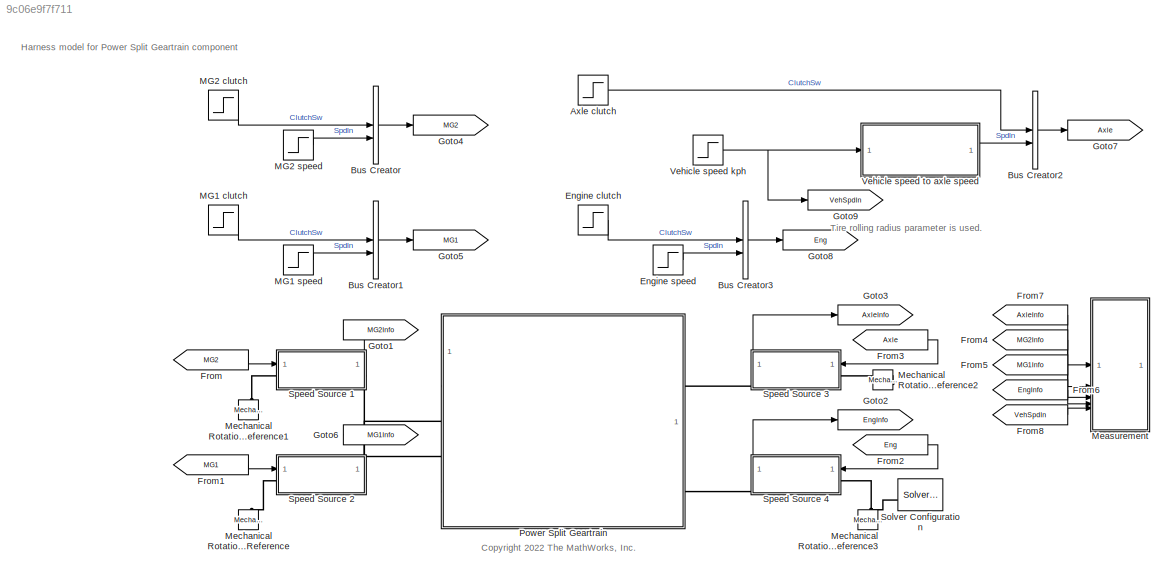
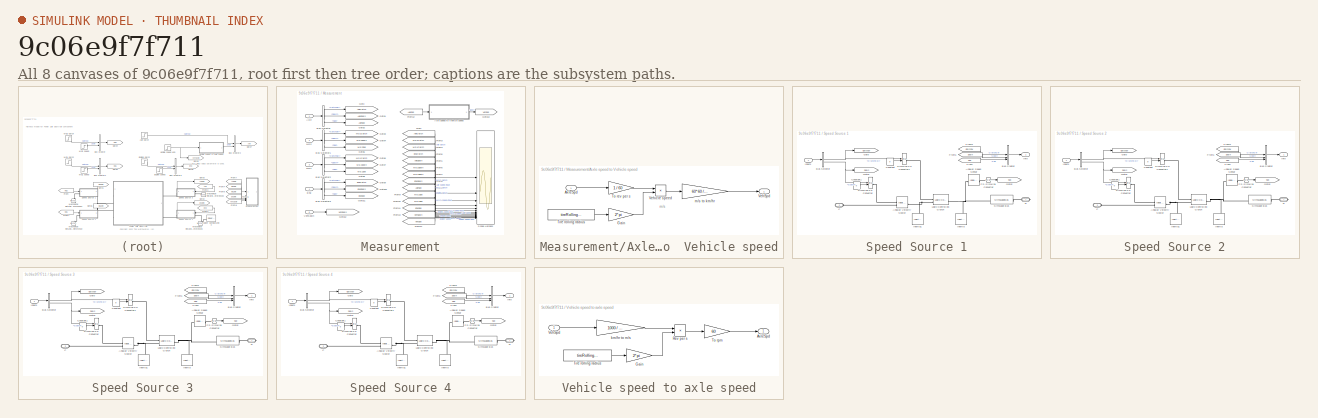
[diagram: thumbnail index - all 8 canvases of the model, root first then tree order]
MODEL mdl_9c06e9f7f711
KIND model
CONFIG AbsTol = auto
CONFIG EnableMultiTasking = off
CONFIG FixedStep = auto
CONFIG MaxStep = auto
CONFIG MinStep = auto
CONFIG PreLoadFcn = PowerSplitGeartrain_Component_harness_setup
CONFIG RelTol = 1e-3
CONFIG SampleTimeConstraint = Unconstrained
CONFIG SolverName = daessc
CONFIG StartTime = 0.0
CONFIG StopTime = 10.0
BLOCK [Step] Axle clutch
  AttributesFormatString = Before %<Before>\nTime %<Time>\nAfter %<After>
  Before = 1
  NameLocation = left
  SampleTime = 0
BLOCK [BusCreator] Bus Creator
  DisplayOption = bar
  InheritFromInputs = on
  Inputs = 2
BLOCK [BusCreator] Bus Creator1
  DisplayOption = bar
  InheritFromInputs = on
  Inputs = 2
BLOCK [BusCreator] Bus Creator2
  DisplayOption = bar
  InheritFromInputs = on
  Inputs = 2
BLOCK [BusCreator] Bus Creator3
  DisplayOption = bar
  InheritFromInputs = on
  Inputs = 2
BLOCK [Step] Engine clutch
  After = 0
  AttributesFormatString = Before %<Before>\nTime %<Time>\nAfter %<After>
  NameLocation = left
  SampleTime = 0
BLOCK [Step] Engine speed
  After = 0
  AttributesFormatString = Before %<Before>\nTime %<Time>\nAfter %<After>
  NameLocation = left
  SampleTime = 0
BLOCK [From] From
  GotoTag = MG2
  NameLocation = left
BLOCK [From] From1
  GotoTag = MG1
  NameLocation = left
BLOCK [From] From2
  GotoTag = Eng
  NameLocation = left
BLOCK [From] From3
  GotoTag = Axle
  NameLocation = left
BLOCK [From] From4
  GotoTag = MG2Info
  NameLocation = left
BLOCK [From] From5
  GotoTag = MG1Info
  NameLocation = left
BLOCK [From] From6
  GotoTag = EngInfo
  NameLocation = left
BLOCK [From] From7
  GotoTag = AxleInfo
  NameLocation = left
BLOCK [From] From8
  GotoTag = VehSpdIn
BLOCK [Goto] Goto1
  GotoTag = MG2Info
BLOCK [Goto] Goto2
  GotoTag = EngInfo
  NameLocation = right
BLOCK [Goto] Goto3
  GotoTag = AxleInfo
  NameLocation = right
BLOCK [Goto] Goto4
  GotoTag = MG2
BLOCK [Goto] Goto5
  GotoTag = MG1
BLOCK [Goto] Goto6
  GotoTag = MG1Info
BLOCK [Goto] Goto7
  GotoTag = Axle
BLOCK [Goto] Goto8
  GotoTag = Eng
BLOCK [Goto] Goto9
  GotoTag = VehSpdIn
  NameLocation = right
BLOCK [Step] MG1 clutch
  After = 0
  AttributesFormatString = Before %<Before>\nTime %<Time>\nAfter %<After>
  NameLocation = left
  SampleTime = 0
BLOCK [Step] MG1 speed
  After = 0
  AttributesFormatString = Before %<Before>\nTime %<Time>\nAfter %<After>
  NameLocation = left
  SampleTime = 0
BLOCK [Step] MG2 clutch
  After = 0
  AttributesFormatString = Before %<Before>\nTime %<Time>\nAfter %<After>
  NameLocation = left
  SampleTime = 0
BLOCK [Step] MG2 speed
  After = 0
  AttributesFormatString = Before %<Before>\nTime %<Time>\nAfter %<After>
  NameLocation = left
  SampleTime = 0
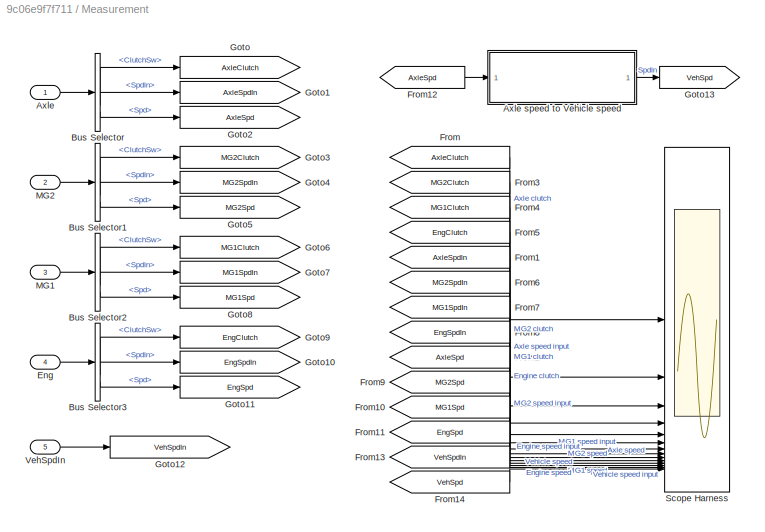
BLOCK [SubSystem] Measurement
BLOCK [Inport] Measurement/Axle
BLOCK [SubSystem] Measurement/Axle speed to  Vehicle speed
BLOCK [Inport] Measurement/Axle speed to  Vehicle speed/AxleSpd
  AttributesFormatString = %<Unit>
  Unit = rpm
BLOCK [Gain] Measurement/Axle speed to  Vehicle speed/Gain
  Gain = 2*pi
BLOCK [Constant] Measurement/Axle speed to  Vehicle speed/Tire rolling radius
  Value = tireRollingRadius_m
BLOCK [Gain] Measurement/Axle speed to  Vehicle speed/To rev per s
  Gain = 1 / 60
BLOCK [Outport] Measurement/Axle speed to  Vehicle speed/VehSpd
  AttributesFormatString = %<Unit>
  Unit = km/hr
BLOCK [Product] Measurement/Axle speed to  Vehicle speed/Vehicle speed
  Inputs = **
  NameLocation = top
BLOCK [Gain] Measurement/Axle speed to  Vehicle speed/m//s to km//hr
  Gain = 60*60 / 1000
BLOCK [BusSelector] Measurement/Bus Selector
  OutputSignals = ClutchSw,SpdIn,Spd
BLOCK [BusSelector] Measurement/Bus Selector1
  OutputSignals = ClutchSw,SpdIn,Spd
BLOCK [BusSelector] Measurement/Bus Selector2
  OutputSignals = ClutchSw,SpdIn,Spd
BLOCK [BusSelector] Measurement/Bus Selector3
  OutputSignals = ClutchSw,SpdIn,Spd
BLOCK [Inport] Measurement/Eng
  Port = 4
BLOCK [From] Measurement/From
  GotoTag = AxleClutch
BLOCK [From] Measurement/From1
  GotoTag = AxleSpdIn
BLOCK [From] Measurement/From10
  GotoTag = MG1Spd
BLOCK [From] Measurement/From11
  GotoTag = EngSpd
BLOCK [From] Measurement/From12
  GotoTag = AxleSpd
BLOCK [From] Measurement/From13
  GotoTag = VehSpdIn
BLOCK [From] Measurement/From14
  GotoTag = VehSpd
BLOCK [From] Measurement/From2
  GotoTag = AxleSpd
BLOCK [From] Measurement/From3
  GotoTag = MG2Clutch
BLOCK [From] Measurement/From4
  GotoTag = MG1Clutch
BLOCK [From] Measurement/From5
  GotoTag = EngClutch
BLOCK [From] Measurement/From6
  GotoTag = MG2SpdIn
BLOCK [From] Measurement/From7
  GotoTag = MG1SpdIn
BLOCK [From] Measurement/From8
  GotoTag = EngSpdIn
BLOCK [From] Measurement/From9
  GotoTag = MG2Spd
BLOCK [Goto] Measurement/Goto
  GotoTag = AxleClutch
  NameLocation = right
BLOCK [Goto] Measurement/Goto1
  GotoTag = AxleSpdIn
  NameLocation = right
BLOCK [Goto] Measurement/Goto10
  GotoTag = EngSpdIn
  NameLocation = right
BLOCK [Goto] Measurement/Goto11
  GotoTag = EngSpd
  NameLocation = right
BLOCK [Goto] Measurement/Goto12
  GotoTag = VehSpdIn
  NameLocation = right
BLOCK [Goto] Measurement/Goto13
  GotoTag = VehSpd
  NameLocation = right
BLOCK [Goto] Measurement/Goto2
  GotoTag = AxleSpd
  NameLocation = right
BLOCK [Goto] Measurement/Goto3
  GotoTag = MG2Clutch
  NameLocation = right
BLOCK [Goto] Measurement/Goto4
  GotoTag = MG2SpdIn
  NameLocation = right
BLOCK [Goto] Measurement/Goto5
  GotoTag = MG2Spd
  NameLocation = right
BLOCK [Goto] Measurement/Goto6
  GotoTag = MG1Clutch
  NameLocation = right
BLOCK [Goto] Measurement/Goto7
  GotoTag = MG1SpdIn
  NameLocation = right
BLOCK [Goto] Measurement/Goto8
  GotoTag = MG1Spd
  NameLocation = right
BLOCK [Goto] Measurement/Goto9
  GotoTag = EngClutch
  NameLocation = right
BLOCK [Inport] Measurement/MG1
  Port = 3
BLOCK [Inport] Measurement/MG2
  Port = 2
BLOCK [Scope] Measurement/Scope Harness
  Floating = off
  NumInputPorts = 14
  ScopeSpecificationString = Simulink.scopes.TimeScopeBlockCfg('CurrentConfiguration', extmgr.ConfigurationSet(extmgr.Configuration('Core','General UI',true),extmgr.Configuration('Core','Source UI',true),extmgr.Configuration('Sources','WiredSimulink',true,'DataLoggingVariableName','ScopeData1'),extmgr.Configuration('Visuals','Time Domain',true,'SerializedDisplays',{struct('MinYLimReal','0.9','MaxYLimReal','1.1','YLabelReal','...<+11891ch>
BLOCK [Inport] Measurement/VehSpdIn
  Port = 5
BLOCK [Reference] Mechanical Rotational Reference  REF=fl_lib/Mechanical/Rotational Elements/Mechanical
Rotational Reference
  NameLocation = right
  SourceBlock = fl_lib/Mechanical/Rotational Elements/Mechanical\nRotational Reference
  SourceType = Mechanical\nRotational Reference
BLOCK [Reference] Mechanical Rotational Reference1  REF=fl_lib/Mechanical/Rotational Elements/Mechanical
Rotational Reference
  NameLocation = left
  SourceBlock = fl_lib/Mechanical/Rotational Elements/Mechanical\nRotational Reference
  SourceType = Mechanical\nRotational Reference
BLOCK [Reference] Mechanical Rotational Reference2  REF=fl_lib/Mechanical/Rotational Elements/Mechanical
Rotational Reference
  NameLocation = right
  SourceBlock = fl_lib/Mechanical/Rotational Elements/Mechanical\nRotational Reference
  SourceType = Mechanical\nRotational Reference
BLOCK [Reference] Mechanical Rotational Reference3  REF=fl_lib/Mechanical/Rotational Elements/Mechanical
Rotational Reference
  NameLocation = left
  SourceBlock = fl_lib/Mechanical/Rotational Elements/Mechanical\nRotational Reference
  SourceType = Mechanical\nRotational Reference
BLOCK [SubSystem] Power Split Geartrain
  PortSchema = {"entries":[{"content":{"sides":[{"content":{"connectorIds":["LConn3","LConn2"]},"type":"ConnectorPlacement.EquallySpacedRectSide","uuid":"39b05f33-5a15-4788-a57f-d6050162e484"},{"content":{"connectorIds":["LConn1","LConn4"],"side":"RIGHT"},"type":"ConnectorPlacement.EquallySpacedRectSide","uuid":"22b56448-375b-40fb-9a49-9bd466a0970b"},{"content":{"side":"TOP"},"type":"ConnectorPlacement.EquallySp...<+245ch>
  ReferencedSubsystem = PowerSplitGeartrain_refsub_Basic
BLOCK [Reference] Solver Configuration  REF=nesl_utility/Solver
Configuration
  NameLocation = right
  SourceBlock = nesl_utility/Solver\nConfiguration
  SourceType = Solver\nConfiguration
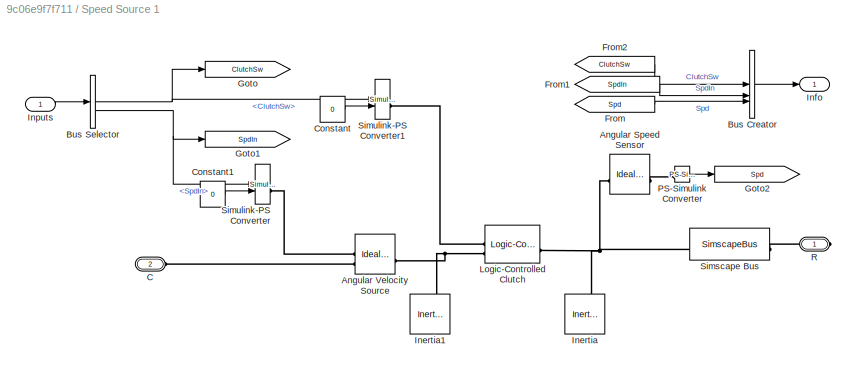
BLOCK [SubSystem] Speed Source 1
  PortSchema = {"entries":[{"content":{"sides":[{"content":{"connectorIds":["In1","LConn1"]},"type":"ConnectorPlacement.EquallySpacedRectSide","uuid":"92a06674-aaa2-495f-b380-fd1e5a218eb3"},{"content":{"connectorIds":["RConn1"],"side":"RIGHT"},"type":"ConnectorPlacement.EquallySpacedRectSide","uuid":"3e9807eb-b215-4ab1-ac02-6574a58f93c0"},{"content":{"connectorIds":["Out1"],"side":"TOP"},"type":"ConnectorPlaceme...<+257ch>  <repeated x4 — deduplicated; at blocks: Speed Source 1, Speed Source 2, Speed Source 3, Speed Source 4>
BLOCK [Reference] Speed Source 1/Angular Speed Sensor  REF=fl_lib/Mechanical/Mechanical Sensors/Ideal Rotational
Motion Sensor
  NameLocation = top
  SourceBlock = fl_lib/Mechanical/Mechanical Sensors/Ideal Rotational\nMotion Sensor
  SourceType = Ideal Rotational\nMotion Sensor
BLOCK [Reference] Speed Source 1/Angular Velocity Source  REF=fl_lib/Mechanical/Mechanical Sources/Ideal Angular
Velocity Source
  NameLocation = top
  SourceBlock = fl_lib/Mechanical/Mechanical Sources/Ideal Angular\nVelocity Source
  SourceType = Ideal Angular\nVelocity Source
BLOCK [BusCreator] Speed Source 1/Bus Creator
  DisplayOption = bar
  InheritFromInputs = on
  Inputs = 3
BLOCK [BusSelector] Speed Source 1/Bus Selector
  OutputSignals = ClutchSw,SpdIn
BLOCK [PMIOPort] Speed Source 1/C
  Port = 2
  Side = Left
BLOCK [Constant] Speed Source 1/Constant
  NameLocation = left
  Value = 0
BLOCK [Constant] Speed Source 1/Constant1
  NameLocation = left
  Value = 0
BLOCK [From] Speed Source 1/From
  GotoTag = Spd
  NameLocation = left
BLOCK [From] Speed Source 1/From1
  GotoTag = SpdIn
  NameLocation = left
BLOCK [From] Speed Source 1/From2
  GotoTag = ClutchSw
  NameLocation = left
BLOCK [Goto] Speed Source 1/Goto
  GotoTag = ClutchSw
  NameLocation = right
BLOCK [Goto] Speed Source 1/Goto1
  GotoTag = SpdIn
  NameLocation = right
BLOCK [Goto] Speed Source 1/Goto2
  GotoTag = Spd
  NameLocation = right
BLOCK [Reference] Speed Source 1/Inertia  REF=fl_lib/Mechanical/Rotational Elements/Inertia
  SourceBlock = fl_lib/Mechanical/Rotational Elements/Inertia
  SourceType = Inertia
BLOCK [Reference] Speed Source 1/Inertia1  REF=fl_lib/Mechanical/Rotational Elements/Inertia
  AttributesFormatString = Priority: %<w_priority>
  SourceBlock = fl_lib/Mechanical/Rotational Elements/Inertia
  SourceType = Inertia
BLOCK [Outport] Speed Source 1/Info
BLOCK [Inport] Speed Source 1/Inputs
BLOCK [Reference] Speed Source 1/Logic-Controlled Clutch  REF=sdl_lib/Clutches/Logic-Controlled
Clutch
  SourceBlock = sdl_lib/Clutches/Logic-Controlled\nClutch
  SourceType = Logic-Controlled\nClutch
BLOCK [Reference] Speed Source 1/PS-Simulink Converter  REF=nesl_utility/PS-Simulink
Converter
  AttributesFormatString = %<Unit>
  SourceBlock = nesl_utility/PS-Simulink\nConverter
  SourceType = PS-Simulink\nConverter
BLOCK [PMIOPort] Speed Source 1/R
  Side = Right
BLOCK [SimscapeBus] Speed Source 1/Simscape Bus
  AttributesFormatString = %<ConnectionType>
  ConnectionType = Bus: Bus_Rotational
  HierarchyStrings = AngSpd
BLOCK [Reference] Speed Source 1/Simulink-PS Converter  REF=nesl_utility/Simulink-PS
Converter
  AttributesFormatString = %<Unit>
  SourceBlock = nesl_utility/Simulink-PS\nConverter
  SourceType = Simulink-PS\nConverter
BLOCK [Reference] Speed Source 1/Simulink-PS Converter1  REF=nesl_utility/Simulink-PS
Converter
  AttributesFormatString = %<Unit>\nDerivative: %<FilteringAndDerivatives>
  SourceBlock = nesl_utility/Simulink-PS\nConverter
  SourceType = Simulink-PS\nConverter
BLOCK [SubSystem] Speed Source 2
BLOCK [Reference] Speed Source 2/Angular Speed Sensor  REF=fl_lib/Mechanical/Mechanical Sensors/Ideal Rotational
Motion Sensor
  NameLocation = top
  SourceBlock = fl_lib/Mechanical/Mechanical Sensors/Ideal Rotational\nMotion Sensor
  SourceType = Ideal Rotational\nMotion Sensor
BLOCK [Reference] Speed Source 2/Angular Velocity Source  REF=fl_lib/Mechanical/Mechanical Sources/Ideal Angular
Velocity Source
  NameLocation = top
  SourceBlock = fl_lib/Mechanical/Mechanical Sources/Ideal Angular\nVelocity Source
  SourceType = Ideal Angular\nVelocity Source
BLOCK [BusCreator] Speed Source 2/Bus Creator
  DisplayOption = bar
  InheritFromInputs = on
  Inputs = 3
BLOCK [BusSelector] Speed Source 2/Bus Selector
  OutputSignals = ClutchSw,SpdIn
BLOCK [PMIOPort] Speed Source 2/C
  Port = 2
  Side = Left
BLOCK [Constant] Speed Source 2/Constant
  NameLocation = left
  Value = 0
BLOCK [Constant] Speed Source 2/Constant1
  NameLocation = left
  Value = 0
BLOCK [From] Speed Source 2/From
  GotoTag = Spd
  NameLocation = left
BLOCK [From] Speed Source 2/From1
  GotoTag = SpdIn
  NameLocation = left
BLOCK [From] Speed Source 2/From2
  GotoTag = ClutchSw
  NameLocation = left
BLOCK [Goto] Speed Source 2/Goto
  GotoTag = ClutchSw
  NameLocation = right
BLOCK [Goto] Speed Source 2/Goto1
  GotoTag = SpdIn
  NameLocation = right
BLOCK [Goto] Speed Source 2/Goto2
  GotoTag = Spd
  NameLocation = right
BLOCK [Reference] Speed Source 2/Inertia  REF=fl_lib/Mechanical/Rotational Elements/Inertia
  SourceBlock = fl_lib/Mechanical/Rotational Elements/Inertia
  SourceType = Inertia
BLOCK [Reference] Speed Source 2/Inertia1  REF=fl_lib/Mechanical/Rotational Elements/Inertia
  AttributesFormatString = Priority: %<w_priority>
  SourceBlock = fl_lib/Mechanical/Rotational Elements/Inertia
  SourceType = Inertia
BLOCK [Outport] Speed Source 2/Info
BLOCK [Inport] Speed Source 2/Inputs
BLOCK [Reference] Speed Source 2/Logic-Controlled Clutch  REF=sdl_lib/Clutches/Logic-Controlled
Clutch
  SourceBlock = sdl_lib/Clutches/Logic-Controlled\nClutch
  SourceType = Logic-Controlled\nClutch
BLOCK [Reference] Speed Source 2/PS-Simulink Converter  REF=nesl_utility/PS-Simulink
Converter
  AttributesFormatString = %<Unit>
  SourceBlock = nesl_utility/PS-Simulink\nConverter
  SourceType = PS-Simulink\nConverter
BLOCK [PMIOPort] Speed Source 2/R
  Side = Right
BLOCK [SimscapeBus] Speed Source 2/Simscape Bus
  AttributesFormatString = %<ConnectionType>
  ConnectionType = Bus: Bus_Rotational
  HierarchyStrings = AngSpd
BLOCK [Reference] Speed Source 2/Simulink-PS Converter  REF=nesl_utility/Simulink-PS
Converter
  AttributesFormatString = %<Unit>
  SourceBlock = nesl_utility/Simulink-PS\nConverter
  SourceType = Simulink-PS\nConverter
BLOCK [Reference] Speed Source 2/Simulink-PS Converter1  REF=nesl_utility/Simulink-PS
Converter
  AttributesFormatString = %<Unit>\nDerivative: %<FilteringAndDerivatives>
  SourceBlock = nesl_utility/Simulink-PS\nConverter
  SourceType = Simulink-PS\nConverter
BLOCK [SubSystem] Speed Source 3
BLOCK [Reference] Speed Source 3/Angular Speed Sensor  REF=fl_lib/Mechanical/Mechanical Sensors/Ideal Rotational
Motion Sensor
  NameLocation = top
  SourceBlock = fl_lib/Mechanical/Mechanical Sensors/Ideal Rotational\nMotion Sensor
  SourceType = Ideal Rotational\nMotion Sensor
BLOCK [Reference] Speed Source 3/Angular Velocity Source  REF=fl_lib/Mechanical/Mechanical Sources/Ideal Angular
Velocity Source
  NameLocation = top
  SourceBlock = fl_lib/Mechanical/Mechanical Sources/Ideal Angular\nVelocity Source
  SourceType = Ideal Angular\nVelocity Source
BLOCK [BusCreator] Speed Source 3/Bus Creator
  DisplayOption = bar
  InheritFromInputs = on
  Inputs = 3
BLOCK [BusSelector] Speed Source 3/Bus Selector
  OutputSignals = ClutchSw,SpdIn
BLOCK [PMIOPort] Speed Source 3/C
  Port = 2
  Side = Left
BLOCK [Constant] Speed Source 3/Constant
  NameLocation = left
  Value = 0
BLOCK [Constant] Speed Source 3/Constant1
  NameLocation = left
  Value = 0
BLOCK [From] Speed Source 3/From
  GotoTag = Spd
  NameLocation = left
BLOCK [From] Speed Source 3/From1
  GotoTag = SpdIn
  NameLocation = left
BLOCK [From] Speed Source 3/From2
  GotoTag = ClutchSw
  NameLocation = left
BLOCK [Goto] Speed Source 3/Goto
  GotoTag = ClutchSw
  NameLocation = right
BLOCK [Goto] Speed Source 3/Goto1
  GotoTag = SpdIn
  NameLocation = right
BLOCK [Goto] Speed Source 3/Goto2
  GotoTag = Spd
  NameLocation = right
BLOCK [Reference] Speed Source 3/Inertia  REF=fl_lib/Mechanical/Rotational Elements/Inertia
  SourceBlock = fl_lib/Mechanical/Rotational Elements/Inertia
  SourceType = Inertia
BLOCK [Reference] Speed Source 3/Inertia1  REF=fl_lib/Mechanical/Rotational Elements/Inertia
  AttributesFormatString = Priority: %<w_priority>
  SourceBlock = fl_lib/Mechanical/Rotational Elements/Inertia
  SourceType = Inertia
BLOCK [Outport] Speed Source 3/Info
BLOCK [Inport] Speed Source 3/Inputs
BLOCK [Reference] Speed Source 3/Logic-Controlled Clutch  REF=sdl_lib/Clutches/Logic-Controlled
Clutch
  SourceBlock = sdl_lib/Clutches/Logic-Controlled\nClutch
  SourceType = Logic-Controlled\nClutch
BLOCK [Reference] Speed Source 3/PS-Simulink Converter  REF=nesl_utility/PS-Simulink
Converter
  AttributesFormatString = %<Unit>
  SourceBlock = nesl_utility/PS-Simulink\nConverter
  SourceType = PS-Simulink\nConverter
BLOCK [PMIOPort] Speed Source 3/R
  Side = Right
BLOCK [SimscapeBus] Speed Source 3/Simscape Bus
  AttributesFormatString = %<ConnectionType>
  ConnectionType = Bus: Bus_Rotational
  HierarchyStrings = AngSpd
BLOCK [Reference] Speed Source 3/Simulink-PS Converter  REF=nesl_utility/Simulink-PS
Converter
  AttributesFormatString = %<Unit>
  SourceBlock = nesl_utility/Simulink-PS\nConverter
  SourceType = Simulink-PS\nConverter
BLOCK [Reference] Speed Source 3/Simulink-PS Converter1  REF=nesl_utility/Simulink-PS
Converter
  AttributesFormatString = %<Unit>\nDerivative: %<FilteringAndDerivatives>
  SourceBlock = nesl_utility/Simulink-PS\nConverter
  SourceType = Simulink-PS\nConverter
BLOCK [SubSystem] Speed Source 4
BLOCK [Reference] Speed Source 4/Angular Speed Sensor  REF=fl_lib/Mechanical/Mechanical Sensors/Ideal Rotational
Motion Sensor
  NameLocation = top
  SourceBlock = fl_lib/Mechanical/Mechanical Sensors/Ideal Rotational\nMotion Sensor
  SourceType = Ideal Rotational\nMotion Sensor
BLOCK [Reference] Speed Source 4/Angular Velocity Source  REF=fl_lib/Mechanical/Mechanical Sources/Ideal Angular
Velocity Source
  NameLocation = top
  SourceBlock = fl_lib/Mechanical/Mechanical Sources/Ideal Angular\nVelocity Source
  SourceType = Ideal Angular\nVelocity Source
BLOCK [BusCreator] Speed Source 4/Bus Creator
  DisplayOption = bar
  InheritFromInputs = on
  Inputs = 3
BLOCK [BusSelector] Speed Source 4/Bus Selector
  OutputSignals = ClutchSw,SpdIn
BLOCK [PMIOPort] Speed Source 4/C
  Port = 2
  Side = Left
BLOCK [Constant] Speed Source 4/Constant
  NameLocation = left
  Value = 0
BLOCK [Constant] Speed Source 4/Constant1
  NameLocation = left
  Value = 0
BLOCK [From] Speed Source 4/From
  GotoTag = Spd
  NameLocation = left
BLOCK [From] Speed Source 4/From1
  GotoTag = SpdIn
  NameLocation = left
BLOCK [From] Speed Source 4/From2
  GotoTag = ClutchSw
  NameLocation = left
BLOCK [Goto] Speed Source 4/Goto
  GotoTag = ClutchSw
  NameLocation = right
BLOCK [Goto] Speed Source 4/Goto1
  GotoTag = SpdIn
  NameLocation = right
BLOCK [Goto] Speed Source 4/Goto2
  GotoTag = Spd
  NameLocation = right
BLOCK [Reference] Speed Source 4/Inertia  REF=fl_lib/Mechanical/Rotational Elements/Inertia
  SourceBlock = fl_lib/Mechanical/Rotational Elements/Inertia
  SourceType = Inertia
BLOCK [Reference] Speed Source 4/Inertia1  REF=fl_lib/Mechanical/Rotational Elements/Inertia
  AttributesFormatString = Priority: %<w_priority>
  SourceBlock = fl_lib/Mechanical/Rotational Elements/Inertia
  SourceType = Inertia
BLOCK [Outport] Speed Source 4/Info
BLOCK [Inport] Speed Source 4/Inputs
BLOCK [Reference] Speed Source 4/Logic-Controlled Clutch  REF=sdl_lib/Clutches/Logic-Controlled
Clutch
  SourceBlock = sdl_lib/Clutches/Logic-Controlled\nClutch
  SourceType = Logic-Controlled\nClutch
BLOCK [Reference] Speed Source 4/PS-Simulink Converter  REF=nesl_utility/PS-Simulink
Converter
  AttributesFormatString = %<Unit>
  SourceBlock = nesl_utility/PS-Simulink\nConverter
  SourceType = PS-Simulink\nConverter
BLOCK [PMIOPort] Speed Source 4/R
  Side = Right
BLOCK [SimscapeBus] Speed Source 4/Simscape Bus
  AttributesFormatString = %<ConnectionType>
  ConnectionType = Bus: Bus_Rotational
  HierarchyStrings = AngSpd
BLOCK [Reference] Speed Source 4/Simulink-PS Converter  REF=nesl_utility/Simulink-PS
Converter
  AttributesFormatString = %<Unit>
  SourceBlock = nesl_utility/Simulink-PS\nConverter
  SourceType = Simulink-PS\nConverter
BLOCK [Reference] Speed Source 4/Simulink-PS Converter1  REF=nesl_utility/Simulink-PS
Converter
  AttributesFormatString = %<Unit>\nDerivative: %<FilteringAndDerivatives>
  SourceBlock = nesl_utility/Simulink-PS\nConverter
  SourceType = Simulink-PS\nConverter
BLOCK [Step] Vehicle speed kph
  After = 160
  AttributesFormatString = Before %<Before>\nTime %<Time>\nAfter %<After>
  Before = 160
  NameLocation = left
  SampleTime = 0
BLOCK [SubSystem] Vehicle speed to axle speed
  NameLocation = top
BLOCK [Outport] Vehicle speed to axle speed/AxleSpd
  AttributesFormatString = %<Unit>
  Unit = rpm
BLOCK [Gain] Vehicle speed to axle speed/Gain
  Gain = 2*pi
BLOCK [Product] Vehicle speed to axle speed/Rev per s
  Inputs = */
BLOCK [Constant] Vehicle speed to axle speed/Tire rolling radius
  Value = tireRollingRadius_m
BLOCK [Gain] Vehicle speed to axle speed/To rpm
  Gain = 60
BLOCK [Inport] Vehicle speed to axle speed/VehSpd
  AttributesFormatString = %<Unit>
  Unit = km/hr
BLOCK [Gain] Vehicle speed to axle speed/km//hr to m//s
  Gain = 1000 / (60*60)
ANNOTATION (root): <copyright redacted>
ANNOTATION (root): Harness model for Power Split Geartrain component
ANNOTATION (root): Tire rolling radius parameter is used.
ANNOTATION Measurement/Axle speed to  Vehicle speed: m/s
LINE Axle clutch:1 -> Bus Creator2:1
LINE Bus Creator1:1 -> Goto5:1
LINE Bus Creator2:1 -> Goto7:1
LINE Bus Creator3:1 -> Goto8:1
LINE Bus Creator:1 -> Goto4:1
LINE Engine clutch:1 -> Bus Creator3:1
LINE Engine speed:1 -> Bus Creator3:2
LINE From1:1 -> Speed Source 2:1
LINE From2:1 -> Speed Source 4:1
LINE From3:1 -> Speed Source 3:1
LINE From4:1 -> Measurement:2
LINE From5:1 -> Measurement:3
LINE From6:1 -> Measurement:4
LINE From7:1 -> Measurement:1
LINE From8:1 -> Measurement:5
LINE From:1 -> Speed Source 1:1
LINE MG1 clutch:1 -> Bus Creator1:1
LINE MG1 speed:1 -> Bus Creator1:2
LINE MG2 clutch:1 -> Bus Creator:1
LINE MG2 speed:1 -> Bus Creator:2
LINE Measurement/Axle speed to  Vehicle speed/AxleSpd:1 -> Measurement/Axle speed to  Vehicle speed/To rev per s:1
LINE Measurement/Axle speed to  Vehicle speed/Gain:1 -> Measurement/Axle speed to  Vehicle speed/Vehicle speed:2
LINE Measurement/Axle speed to  Vehicle speed/Tire rolling radius:1 -> Measurement/Axle speed to  Vehicle speed/Gain:1
LINE Measurement/Axle speed to  Vehicle speed/To rev per s:1 -> Measurement/Axle speed to  Vehicle speed/Vehicle speed:1
LINE Measurement/Axle speed to  Vehicle speed/Vehicle speed:1 -> Measurement/Axle speed to  Vehicle speed/m//s to km//hr:1
LINE Measurement/Axle speed to  Vehicle speed/m//s to km//hr:1 -> Measurement/Axle speed to  Vehicle speed/VehSpd:1
LINE Measurement/Axle speed to  Vehicle speed:1 -> Measurement/Goto13:1
LINE Measurement/Axle:1 -> Measurement/Bus Selector:1
LINE Measurement/Bus Selector1:1 -> Measurement/Goto3:1
LINE Measurement/Bus Selector1:2 -> Measurement/Goto4:1
LINE Measurement/Bus Selector1:3 -> Measurement/Goto5:1
LINE Measurement/Bus Selector2:1 -> Measurement/Goto6:1
LINE Measurement/Bus Selector2:2 -> Measurement/Goto7:1
LINE Measurement/Bus Selector2:3 -> Measurement/Goto8:1
LINE Measurement/Bus Selector3:1 -> Measurement/Goto9:1
LINE Measurement/Bus Selector3:2 -> Measurement/Goto10:1
LINE Measurement/Bus Selector3:3 -> Measurement/Goto11:1
LINE Measurement/Bus Selector:1 -> Measurement/Goto:1
LINE Measurement/Bus Selector:2 -> Measurement/Goto1:1
LINE Measurement/Bus Selector:3 -> Measurement/Goto2:1
LINE Measurement/Eng:1 -> Measurement/Bus Selector3:1
LINE Measurement/From10:1 -> Measurement/Scope Harness:11
LINE Measurement/From11:1 -> Measurement/Scope Harness:12
LINE Measurement/From12:1 -> Measurement/Axle speed to  Vehicle speed:1
LINE Measurement/From13:1 -> Measurement/Scope Harness:13
LINE Measurement/From14:1 -> Measurement/Scope Harness:14
LINE Measurement/From1:1 -> Measurement/Scope Harness:5
LINE Measurement/From2:1 -> Measurement/Scope Harness:9
LINE Measurement/From3:1 -> Measurement/Scope Harness:2
LINE Measurement/From4:1 -> Measurement/Scope Harness:3
LINE Measurement/From5:1 -> Measurement/Scope Harness:4
LINE Measurement/From6:1 -> Measurement/Scope Harness:6
LINE Measurement/From7:1 -> Measurement/Scope Harness:7
LINE Measurement/From8:1 -> Measurement/Scope Harness:8
LINE Measurement/From9:1 -> Measurement/Scope Harness:10
LINE Measurement/From:1 -> Measurement/Scope Harness:1
LINE Measurement/MG1:1 -> Measurement/Bus Selector2:1
LINE Measurement/MG2:1 -> Measurement/Bus Selector1:1
LINE Measurement/VehSpdIn:1 -> Measurement/Goto12:1
LINE Speed Source 1/Bus Creator:1 -> Speed Source 1/Info:1
NET Speed Source 1/Bus Selector:1 -> Speed Source 1/Goto:1, Speed Source 1/Simulink-PS Converter1:1
NET Speed Source 1/Bus Selector:2 -> Speed Source 1/Goto1:1, Speed Source 1/Simulink-PS Converter:1
LINE Speed Source 1/Constant1:1 -> Speed Source 1/Simulink-PS Converter:2
LINE Speed Source 1/Constant:1 -> Speed Source 1/Simulink-PS Converter1:2
LINE Speed Source 1/From1:1 -> Speed Source 1/Bus Creator:2
LINE Speed Source 1/From2:1 -> Speed Source 1/Bus Creator:1
LINE Speed Source 1/From:1 -> Speed Source 1/Bus Creator:3
LINE Speed Source 1/Inputs:1 -> Speed Source 1/Bus Selector:1
LINE Speed Source 1/PS-Simulink Converter:1 -> Speed Source 1/Goto2:1
LINE Speed Source 1:1 -> Goto1:1
LINE Speed Source 2/Bus Creator:1 -> Speed Source 2/Info:1
NET Speed Source 2/Bus Selector:1 -> Speed Source 2/Goto:1, Speed Source 2/Simulink-PS Converter1:1
NET Speed Source 2/Bus Selector:2 -> Speed Source 2/Goto1:1, Speed Source 2/Simulink-PS Converter:1
LINE Speed Source 2/Constant1:1 -> Speed Source 2/Simulink-PS Converter:2
LINE Speed Source 2/Constant:1 -> Speed Source 2/Simulink-PS Converter1:2
LINE Speed Source 2/From1:1 -> Speed Source 2/Bus Creator:2
LINE Speed Source 2/From2:1 -> Speed Source 2/Bus Creator:1
LINE Speed Source 2/From:1 -> Speed Source 2/Bus Creator:3
LINE Speed Source 2/Inputs:1 -> Speed Source 2/Bus Selector:1
LINE Speed Source 2/PS-Simulink Converter:1 -> Speed Source 2/Goto2:1
LINE Speed Source 2:1 -> Goto6:1
LINE Speed Source 3/Bus Creator:1 -> Speed Source 3/Info:1
NET Speed Source 3/Bus Selector:1 -> Speed Source 3/Goto:1, Speed Source 3/Simulink-PS Converter1:1
NET Speed Source 3/Bus Selector:2 -> Speed Source 3/Goto1:1, Speed Source 3/Simulink-PS Converter:1
LINE Speed Source 3/Constant1:1 -> Speed Source 3/Simulink-PS Converter:2
LINE Speed Source 3/Constant:1 -> Speed Source 3/Simulink-PS Converter1:2
LINE Speed Source 3/From1:1 -> Speed Source 3/Bus Creator:2
LINE Speed Source 3/From2:1 -> Speed Source 3/Bus Creator:1
LINE Speed Source 3/From:1 -> Speed Source 3/Bus Creator:3
LINE Speed Source 3/Inputs:1 -> Speed Source 3/Bus Selector:1
LINE Speed Source 3/PS-Simulink Converter:1 -> Speed Source 3/Goto2:1
LINE Speed Source 3:1 -> Goto3:1
LINE Speed Source 4/Bus Creator:1 -> Speed Source 4/Info:1
NET Speed Source 4/Bus Selector:1 -> Speed Source 4/Goto:1, Speed Source 4/Simulink-PS Converter1:1
NET Speed Source 4/Bus Selector:2 -> Speed Source 4/Goto1:1, Speed Source 4/Simulink-PS Converter:1
LINE Speed Source 4/Constant1:1 -> Speed Source 4/Simulink-PS Converter:2
LINE Speed Source 4/Constant:1 -> Speed Source 4/Simulink-PS Converter1:2
LINE Speed Source 4/From1:1 -> Speed Source 4/Bus Creator:2
LINE Speed Source 4/From2:1 -> Speed Source 4/Bus Creator:1
LINE Speed Source 4/From:1 -> Speed Source 4/Bus Creator:3
LINE Speed Source 4/Inputs:1 -> Speed Source 4/Bus Selector:1
LINE Speed Source 4/PS-Simulink Converter:1 -> Speed Source 4/Goto2:1
LINE Speed Source 4:1 -> Goto2:1
NET Vehicle speed kph:1 -> Goto9:1, Vehicle speed to axle speed:1
LINE Vehicle speed to axle speed/Gain:1 -> Vehicle speed to axle speed/Rev per s:2
LINE Vehicle speed to axle speed/Rev per s:1 -> Vehicle speed to axle speed/To rpm:1
LINE Vehicle speed to axle speed/Tire rolling radius:1 -> Vehicle speed to axle speed/Gain:1
LINE Vehicle speed to axle speed/To rpm:1 -> Vehicle speed to axle speed/AxleSpd:1
LINE Vehicle speed to axle speed/VehSpd:1 -> Vehicle speed to axle speed/km//hr to m//s:1
LINE Vehicle speed to axle speed/km//hr to m//s:1 -> Vehicle speed to axle speed/Rev per s:1
LINE Vehicle speed to axle speed:1 -> Bus Creator2:2
PLINE Mechanical Rotational Reference1:LConn1 -- Speed Source 1:LConn1
PLINE Mechanical Rotational Reference2:LConn1 -- Speed Source 3:LConn1
PNET net1: Mechanical Rotational Reference3:LConn1 -- Solver Configuration:RConn1 -- Speed Source 4:LConn1
PLINE Mechanical Rotational Reference:LConn1 -- Speed Source 2:LConn1
PLINE Power Split Geartrain:LConn1 -- Speed Source 3:RConn1
PLINE Power Split Geartrain:LConn2 -- Speed Source 2:RConn1
PLINE Power Split Geartrain:LConn3 -- Speed Source 1:RConn1
PLINE Power Split Geartrain:LConn4 -- Speed Source 4:RConn1
PNET net2: Speed Source 1/Angular Speed Sensor:LConn1 -- Speed Source 1/Inertia:LConn1 -- Speed Source 1/Logic-Controlled Clutch:RConn1 -- Speed Source 1/Simscape Bus:LConn1
PLINE Speed Source 1/Angular Speed Sensor:RConn1 -- Speed Source 1/PS-Simulink Converter:LConn1
PNET net3: Speed Source 1/Angular Velocity Source:LConn1 -- Speed Source 1/Inertia1:LConn1 -- Speed Source 1/Logic-Controlled Clutch:LConn2
PLINE Speed Source 1/Angular Velocity Source:RConn1 -- Speed Source 1/Simulink-PS Converter:RConn1
PLINE Speed Source 1/Angular Velocity Source:RConn2 -- Speed Source 1/C:RConn1
PLINE Speed Source 1/Logic-Controlled Clutch:LConn1 -- Speed Source 1/Simulink-PS Converter1:RConn1
PLINE Speed Source 1/R:RConn1 -- Speed Source 1/Simscape Bus:RConn1
PNET net4: Speed Source 2/Angular Speed Sensor:LConn1 -- Speed Source 2/Inertia:LConn1 -- Speed Source 2/Logic-Controlled Clutch:RConn1 -- Speed Source 2/Simscape Bus:LConn1
PLINE Speed Source 2/Angular Speed Sensor:RConn1 -- Speed Source 2/PS-Simulink Converter:LConn1
PNET net5: Speed Source 2/Angular Velocity Source:LConn1 -- Speed Source 2/Inertia1:LConn1 -- Speed Source 2/Logic-Controlled Clutch:LConn2
PLINE Speed Source 2/Angular Velocity Source:RConn1 -- Speed Source 2/Simulink-PS Converter:RConn1
PLINE Speed Source 2/Angular Velocity Source:RConn2 -- Speed Source 2/C:RConn1
PLINE Speed Source 2/Logic-Controlled Clutch:LConn1 -- Speed Source 2/Simulink-PS Converter1:RConn1
PLINE Speed Source 2/R:RConn1 -- Speed Source 2/Simscape Bus:RConn1
PNET net6: Speed Source 3/Angular Speed Sensor:LConn1 -- Speed Source 3/Inertia:LConn1 -- Speed Source 3/Logic-Controlled Clutch:RConn1 -- Speed Source 3/Simscape Bus:LConn1
PLINE Speed Source 3/Angular Speed Sensor:RConn1 -- Speed Source 3/PS-Simulink Converter:LConn1
PNET net7: Speed Source 3/Angular Velocity Source:LConn1 -- Speed Source 3/Inertia1:LConn1 -- Speed Source 3/Logic-Controlled Clutch:LConn2
PLINE Speed Source 3/Angular Velocity Source:RConn1 -- Speed Source 3/Simulink-PS Converter:RConn1
PLINE Speed Source 3/Angular Velocity Source:RConn2 -- Speed Source 3/C:RConn1
PLINE Speed Source 3/Logic-Controlled Clutch:LConn1 -- Speed Source 3/Simulink-PS Converter1:RConn1
PLINE Speed Source 3/R:RConn1 -- Speed Source 3/Simscape Bus:RConn1
PNET net8: Speed Source 4/Angular Speed Sensor:LConn1 -- Speed Source 4/Inertia:LConn1 -- Speed Source 4/Logic-Controlled Clutch:RConn1 -- Speed Source 4/Simscape Bus:LConn1
PLINE Speed Source 4/Angular Speed Sensor:RConn1 -- Speed Source 4/PS-Simulink Converter:LConn1
PNET net9: Speed Source 4/Angular Velocity Source:LConn1 -- Speed Source 4/Inertia1:LConn1 -- Speed Source 4/Logic-Controlled Clutch:LConn2
PLINE Speed Source 4/Angular Velocity Source:RConn1 -- Speed Source 4/Simulink-PS Converter:RConn1
PLINE Speed Source 4/Angular Velocity Source:RConn2 -- Speed Source 4/C:RConn1
PLINE Speed Source 4/Logic-Controlled Clutch:LConn1 -- Speed Source 4/Simulink-PS Converter1:RConn1
PLINE Speed Source 4/R:RConn1 -- Speed Source 4/Simscape Bus:RConn1
note: NET lines group one-source signal fan-out (src -> all destinations, sorted); 1:1 wires keep LINE; PNET lines group multi-terminal physical nets as a canonical sorted terminal list (undirected conserving connections); 2-terminal nets keep the pairwise PLINE form
